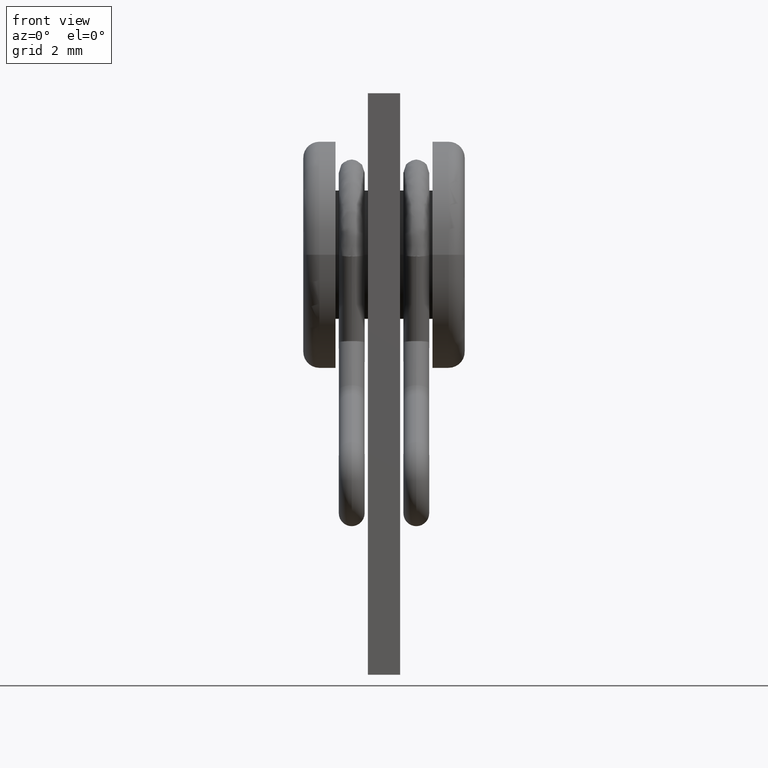
[diagram: clean part render]
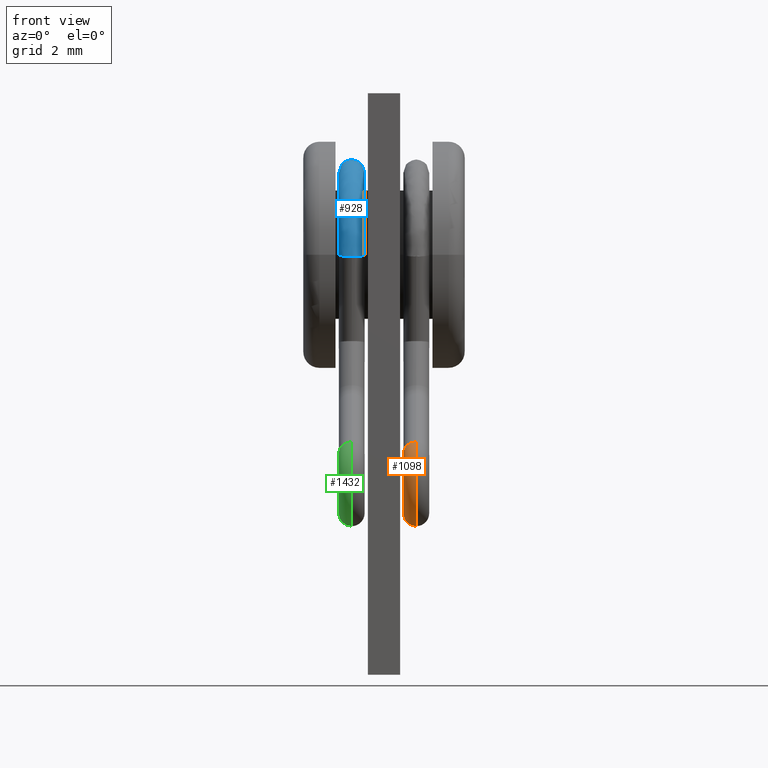
[diagram: same view with three faces highlighted in distinct colors, each labeled with its STEP entity id]
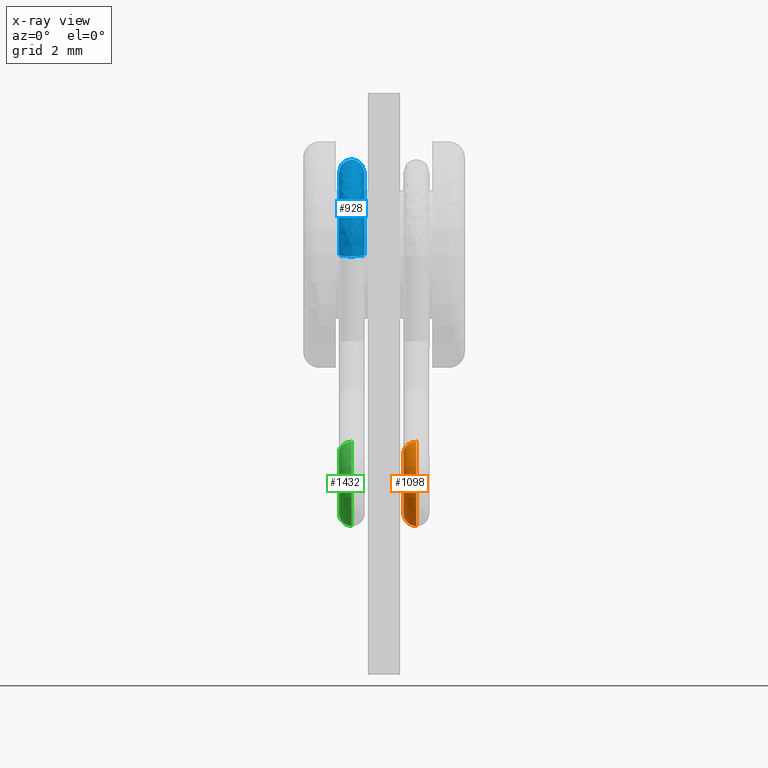
[diagram: x-ray of the same camera — body ghosted, the three highlighted faces saturated]
A machine part, front view with three faces highlighted in distinct colors.
The next image is the same camera in x-ray (body ghosted, the three faces saturated) — at least one of them is partly hidden behind the body in this view.
Their STEP definitions:

[orange] entity #1098 — the highlighted toroidal blend (fillet) surface has major radius 1 mm and minor (blend) radius 0.4 mm.
#17 = ORIENTED_EDGE ( 'NONE', *, *, #1753, .F. ) ;
#70 = DIRECTION ( 'NONE',  ( -2.769644685656682055E-16, 0.8630376117627194255, 0.5051396645314063516 ) ) ;
#133 = VERTEX_POINT ( 'NONE', #3028 ) ;
#238 = CARTESIAN_POINT ( 'NONE',  ( 1.000000000000002665, -4.999999999999995559, 6.000000000000000000 ) ) ;
#272 = AXIS2_PLACEMENT_3D ( 'NONE', #2998, #70, #1533 ) ;
#319 = AXIS2_PLACEMENT_3D ( 'NONE', #238, #2883, #1410 ) ;
#397 = VERTEX_POINT ( 'NONE', #507 ) ;
#427 = FACE_OUTER_BOUND ( 'NONE', #1535, .T. ) ;
#507 = CARTESIAN_POINT ( 'NONE',  ( 1.000000000000002887, -5.303083798718839503, 6.517822567057631744 ) ) ;
#539 = DIRECTION ( 'NONE',  ( -3.614007241618348771E-16, 1.000000000000000000, 0.000000000000000000 ) ) ;
#620 = EDGE_CURVE ( 'NONE', #397, #1096, #2556, .T. ) ;
#653 = VERTEX_POINT ( 'NONE', #2078 ) ;
#682 = DIRECTION ( 'NONE',  ( 1.000000000000000000, 3.794707603699264533E-16, 0.000000000000000000 ) ) ;
#772 = AXIS2_PLACEMENT_3D ( 'NONE', #1113, #2080, #539 ) ;
#776 = CIRCLE ( 'NONE', #2105, 1.399999999999999245 ) ;
#834 = TOROIDAL_SURFACE ( 'NONE', #319, 0.9999999999999993339, 0.3999999999999999667 ) ;
#922 = ORIENTED_EDGE ( 'NONE', *, *, #2216, .T. ) ;
#1013 = CARTESIAN_POINT ( 'NONE',  ( 1.000000000000002887, -4.999999999999995559, 5.000000000000000888 ) ) ;
#1096 = VERTEX_POINT ( 'NONE', #1463 ) ;
#1098 = ADVANCED_FACE ( 'NONE', ( #427 ), #834, .T. ) ;
#1101 = CARTESIAN_POINT ( 'NONE',  ( 1.000000000000002887, -4.999999999999995559, 5.000000000000000888 ) ) ;
#1113 = CARTESIAN_POINT ( 'NONE',  ( 1.000000000000002665, -4.999999999999995559, 6.000000000000000000 ) ) ;
#1147 = DIRECTION ( 'NONE',  ( 1.000000000000000000, 0.000000000000000000, 0.000000000000000000 ) ) ;
#1161 = EDGE_CURVE ( 'NONE', #133, #653, #776, .T. ) ;
#1344 = ORIENTED_EDGE ( 'NONE', *, *, #620, .T. ) ;
#1393 = EDGE_CURVE ( 'NONE', #1096, #1635, #2903, .T. ) ;
#1410 = DIRECTION ( 'NONE',  ( -3.794707603699265026E-16, 1.000000000000000000, 0.000000000000000000 ) ) ;
#1460 = CARTESIAN_POINT ( 'NONE',  ( 0.6000000000000028644, -4.999999999999995559, 5.000000000000000000 ) ) ;
#1463 = CARTESIAN_POINT ( 'NONE',  ( 1.000000000000002665, -4.999999999999995559, 5.400000000000001243 ) ) ;
#1507 = ORIENTED_EDGE ( 'NONE', *, *, #1161, .F. ) ;
#1533 = DIRECTION ( 'NONE',  ( 1.000000000000000000, 0.000000000000000000, 0.000000000000000000 ) ) ;
#1535 = EDGE_LOOP ( 'NONE', ( #1507, #17, #1344, #2560, #922 ) ) ;
#1635 = VERTEX_POINT ( 'NONE', #1460 ) ;
#1702 = CIRCLE ( 'NONE', #272, 0.3999999999999999667 ) ;
#1753 = EDGE_CURVE ( 'NONE', #397, #133, #1702, .T. ) ;
#1792 = DIRECTION ( 'NONE',  ( 5.310377987684109770E-16, -1.000000000000000000, 0.000000000000000000 ) ) ;
#1857 = AXIS2_PLACEMENT_3D ( 'NONE', #1013, #2877, #1973 ) ;
#1954 = CIRCLE ( 'NONE', #1857, 0.3999999999999999667 ) ;
#1973 = DIRECTION ( 'NONE',  ( 1.000000000000000000, 0.000000000000000000, 0.000000000000000000 ) ) ;
#2078 = CARTESIAN_POINT ( 'NONE',  ( 1.000000000000002665, -4.999999999999995559, 4.600000000000000533 ) ) ;
#2080 = DIRECTION ( 'NONE',  ( 1.000000000000000000, 3.794707603699264533E-16, 0.000000000000000000 ) ) ;
#2105 = AXIS2_PLACEMENT_3D ( 'NONE', #2167, #682, #2650 ) ;
#2157 = AXIS2_PLACEMENT_3D ( 'NONE', #1101, #1792, #1147 ) ;
#2167 = CARTESIAN_POINT ( 'NONE',  ( 1.000000000000002665, -4.999999999999995559, 6.000000000000000000 ) ) ;
#2216 = EDGE_CURVE ( 'NONE', #1635, #653, #1954, .T. ) ;
#2556 = CIRCLE ( 'NONE', #772, 0.5999999999999998668 ) ;
#2560 = ORIENTED_EDGE ( 'NONE', *, *, #1393, .T. ) ;
#2650 = DIRECTION ( 'NONE',  ( -3.097720492815728645E-16, 1.000000000000000000, 0.000000000000000000 ) ) ;
#2877 = DIRECTION ( 'NONE',  ( 5.310377987684109770E-16, -1.000000000000000000, 0.000000000000000000 ) ) ;
#2883 = DIRECTION ( 'NONE',  ( 1.000000000000000000, 3.794707603699264533E-16, 0.000000000000000000 ) ) ;
#2903 = CIRCLE ( 'NONE', #2157, 0.3999999999999999667 ) ;
#2998 = CARTESIAN_POINT ( 'NONE',  ( 1.000000000000002887, -5.505139664531401245, 6.863037611762718093 ) ) ;
#3028 = CARTESIAN_POINT ( 'NONE',  ( 1.000000000000002887, -5.707195530343964762, 7.208252656467807995 ) ) ;

[blue] entity #928 — the highlighted face is a freeform B-spline surface patch.
#3 = CARTESIAN_POINT ( 'NONE',  ( -1.357678076555738800, 2.757733919338726469, 12.97265988112446244 ) ) ;
#6 = ORIENTED_EDGE ( 'NONE', *, *, #1685, .T. ) ;
#53 = CARTESIAN_POINT ( 'NONE',  ( -0.6000000000000011990, -2.468288161014357218, 13.66175922868801251 ) ) ;
#55 = CARTESIAN_POINT ( 'NONE',  ( -1.400000000000000133, 0.4581475110107846582, 14.74999999999884004 ) ) ;
#56 = CARTESIAN_POINT ( 'NONE',  ( -0.6000000000000009770, -1.399416392710959967, 14.07545734150463801 ) ) ;
#69 = CARTESIAN_POINT ( 'NONE',  ( -0.5999999999999990896, 3.349989222046435344, 13.09680935352849573 ) ) ;
#88 = CARTESIAN_POINT ( 'NONE',  ( -0.6000000000000016431, -3.349989222046363402, 13.09680935352849929 ) ) ;
#101 = CARTESIAN_POINT ( 'NONE',  ( -0.6000000000000013101, -2.545879930339973729, 13.16724665663084970 ) ) ;
#111 = CARTESIAN_POINT ( 'NONE',  ( -1.399999999999999467, 2.517196728838232200, 13.41615929504400206 ) ) ;
#117 = CARTESIAN_POINT ( 'NONE',  ( -0.5999999999999990896, 3.350009266988449141, 12.91676238393189102 ) ) ;
#150 = CARTESIAN_POINT ( 'NONE',  ( -1.400000000000001465, -3.306905506512976878, 13.54671907388143204 ) ) ;
#165 = CARTESIAN_POINT ( 'NONE',  ( -1.399999999999999467, 2.517196728838232200, 13.41615929504400206 ) ) ;
#169 = CARTESIAN_POINT ( 'NONE',  ( -0.5999999999999998668, 1.331067674462010686, 15.27517690940495854 ) ) ;
#206 = B_SPLINE_CURVE_WITH_KNOTS ( 'NONE', 3,
 ( #456, #3110, #1452, #3, #1210, #2623 ),
 .UNSPECIFIED., .F., .F.,
 ( 4, 2, 4 ),
 ( 0.0006202787209371002060, 0.0009341337470515161025, 0.001247988773165931891 ),
 .UNSPECIFIED. ) ;
#217 = CARTESIAN_POINT ( 'NONE',  ( -0.6000000000000000888, 1.399416392711164248, 14.07545734150523309 ) ) ;
#235 = B_SPLINE_CURVE_WITH_KNOTS ( 'NONE', 3,
 ( #1887, #674, #2143, #1654, #2614, #437 ),
 .UNSPECIFIED., .F., .F.,
 ( 4, 2, 4 ),
 ( 0.0006284202095626171278, 0.0009467790735410146642, 0.001265137937519412309 ),
 .UNSPECIFIED. ) ;
#251 = ORIENTED_EDGE ( 'NONE', *, *, #1483, .T. ) ;
#261 = CARTESIAN_POINT ( 'NONE',  ( -0.5999999999999996447, 2.517196728838267727, 13.41615929504400206 ) ) ;
#271 = CARTESIAN_POINT ( 'NONE',  ( -1.399999999999999467, 2.550000000000009148, 13.00000000000001066 ) ) ;
#286 = ORIENTED_EDGE ( 'NONE', *, *, #1978, .F. ) ;
#287 = CARTESIAN_POINT ( 'NONE',  ( -1.399999999999999467, 1.748657533116892759, 15.98895790059101252 ) ) ;
#294 = CARTESIAN_POINT ( 'NONE',  ( -1.400000000000000799, -1.735916913686351037, 13.22886241449764455 ) ) ;
#302 = CARTESIAN_POINT ( 'NONE',  ( -0.6000000000000013101, -2.529478931371553330, 13.33348523255366125 ) ) ;
#309 = CARTESIAN_POINT ( 'NONE',  ( -1.400000000000001243, -1.528898795973100411, 13.88172938376082932 ) ) ;
#317 = CARTESIAN_POINT ( 'NONE',  ( -1.399999999999999467, 3.350009266988449586, 12.91676238393189102 ) ) ;
#332 = CARTESIAN_POINT ( 'NONE',  ( -1.400000000000001243, -1.750000000000001554, 12.78414580212309204 ) ) ;
#338 = CARTESIAN_POINT ( 'NONE',  ( -0.6000000000000009770, -1.331067674462243167, 15.27517690940617356 ) ) ;
#350 = CARTESIAN_POINT ( 'NONE',  ( -0.6000000000000014211, -2.550000000000001155, 12.85609720141537871 ) ) ;
#356 = CARTESIAN_POINT ( 'NONE',  ( -0.9999999999999963363, 2.950003356577393543, 12.94735152788241450 ) ) ;
#364 = CARTESIAN_POINT ( 'NONE',  ( -1.400000000000001910, -3.350000000000000977, 12.85609720141538048 ) ) ;
#366 = CARTESIAN_POINT ( 'NONE',  ( -1.399999999999999467, 2.549991795886098256, 13.08368269480378920 ) ) ;
#385 = CARTESIAN_POINT ( 'NONE',  ( -1.400000000000001243, -2.550000000000001155, 12.85609720141537871 ) ) ;
#389 = CARTESIAN_POINT ( 'NONE',  ( -0.6428037988113329826, 2.758216709405810096, 12.97259633293495718 ) ) ;
#400 = CARTESIAN_POINT ( 'NONE',  ( -1.399999999999999467, 2.227823959846286783, 14.28480567347927810 ) ) ;
#421 = CARTESIAN_POINT ( 'NONE',  ( -1.399999999999999467, 2.227823959846286783, 14.28480567347927810 ) ) ;
#437 = CARTESIAN_POINT ( 'NONE',  ( -1.400000000000001243, -2.550000000000001155, 13.00000000000000178 ) ) ;
#456 = CARTESIAN_POINT ( 'NONE',  ( -0.9999999999999963363, 2.950003356577393543, 12.94735152788241450 ) ) ;
#498 = B_SPLINE_CURVE_WITH_KNOTS ( 'NONE', 3,
 ( #271, #972, #1739, #2601, #1502, #2469, #1260, #421, #1404, #2408, #2025, #2718, #2264, #1276, #2983, #817, #2498, #1553, #800, #2011, #1785, #851 ),
 .UNSPECIFIED., .F., .F.,
 ( 4, 2, 2, 2, 2, 2, 2, 2, 2, 2, 4 ),
 ( -1.545224709151703387E-15, 0.03124999999999862957, 0.06249999999999879957, 0.1249999999999991535, 0.2499999999999998335, 0.5000000000000012212, 0.7500000000000026645, 0.8750000000000033307, 0.9375000000000036637, 0.9687500000000037748, 1.000000000000003997 ),
 .UNSPECIFIED. ) ;
#518 = CARTESIAN_POINT ( 'NONE',  ( -1.400000000000001465, -2.926749123719576851, 14.68788196319920125 ) ) ;
#535 = CARTESIAN_POINT ( 'NONE',  ( -0.6000000000000014211, -2.550000000000001155, 12.78414580212309026 ) ) ;
#543 = CARTESIAN_POINT ( 'NONE',  ( -1.400000000000000133, 0.6675863731872427875, 15.54999999999883897 ) ) ;
#549 = CARTESIAN_POINT ( 'NONE',  ( -0.5999999999999997558, 2.419553885554824202, 13.82226230502555353 ) ) ;
#567 = CARTESIAN_POINT ( 'NONE',  ( -1.399999999999999467, 3.350000000000001865, 12.78414580212309204 ) ) ;
#569 = CARTESIAN_POINT ( 'NONE',  ( -1.400000000000000799, -1.399416392711032131, 14.07545734150463801 ) ) ;
#588 = CARTESIAN_POINT ( 'NONE',  ( -1.400000000000001243, -2.550007053976341975, 12.92804881173416121 ) ) ;
#589 = CARTESIAN_POINT ( 'NONE',  ( -1.399999999999999467, 3.350000000000001865, 12.85609720141527923 ) ) ;
#597 = VERTEX_POINT ( 'NONE', #2295 ) ;
#602 = CARTESIAN_POINT ( 'NONE',  ( -1.399999999999999911, 1.750000000000002665, 12.78414580212309204 ) ) ;
#641 = CARTESIAN_POINT ( 'NONE',  ( -1.399999999999999467, 2.550000000000002043, 12.78414580212309026 ) ) ;
#656 = CARTESIAN_POINT ( 'NONE',  ( -1.400000000000001243, -2.517196728838199782, 13.41615929504404825 ) ) ;
#658 = CARTESIAN_POINT ( 'NONE',  ( -0.6000000000000013101, -2.227823959846339630, 14.28480567348001529 ) ) ;
#674 = CARTESIAN_POINT ( 'NONE',  ( -1.104718135162353843, -2.950003356577420188, 12.94735152788251042 ) ) ;
#675 = CARTESIAN_POINT ( 'NONE',  ( -0.5999999999999997558, 2.529478931371553330, 13.33348523255367368 ) ) ;
#695 = CARTESIAN_POINT ( 'NONE',  ( -0.6000000000000004219, 0.6675863731872418994, 15.54999999999883897 ) ) ;
#705 = CARTESIAN_POINT ( 'NONE',  ( -1.400000000000000133, 1.528898795972922331, 13.88172938376019516 ) ) ;
#706 = CARTESIAN_POINT ( 'NONE',  ( -1.000000000000004219, -2.950003356577420188, 12.94735152788250865 ) ) ;
#707 = CARTESIAN_POINT ( 'NONE',  ( -1.400000000000001243, -1.749994369725686116, 13.07055603607910577 ) ) ;
#767 = CARTESIAN_POINT ( 'NONE',  ( -1.399999999999999467, 3.178629614356326627, 14.08022694973940858 ) ) ;
#782 = CARTESIAN_POINT ( 'NONE',  ( -0.5999999999999993117, 3.178629614356325739, 14.08022694973940858 ) ) ;
#784 = CARTESIAN_POINT ( 'NONE',  ( -1.400000000000000133, 1.399416392711129165, 14.07545734150523309 ) ) ;
#791 = CARTESIAN_POINT ( 'NONE',  ( -0.5999999999999997558, 2.529478931371553330, 13.33348523255367368 ) ) ;
#799 = CARTESIAN_POINT ( 'NONE',  ( -0.6000000000000016431, -3.350000000000000977, 12.78414580212309204 ) ) ;
#800 = CARTESIAN_POINT ( 'NONE',  ( -1.400000000000001021, -2.529478931371552441, 13.33348523255366125 ) ) ;
#803 = VERTEX_POINT ( 'NONE', #2488 ) ;
#810 = CARTESIAN_POINT ( 'NONE',  ( -1.400000000000000133, -0.6675863731872332396, 15.55000000000115712 ) ) ;
#816 = CARTESIAN_POINT ( 'NONE',  ( -0.6000000000000015321, -2.926749123719649237, 14.68788196319920125 ) ) ;
#817 = CARTESIAN_POINT ( 'NONE',  ( -1.400000000000001243, -2.419553885554790895, 13.82226230502519648 ) ) ;
#832 = CARTESIAN_POINT ( 'NONE',  ( -0.6000000000000014211, -2.549991795886024537, 13.08368269480380164 ) ) ;
#851 = CARTESIAN_POINT ( 'NONE',  ( -1.400000000000001243, -2.550000000000001155, 13.00000000000000178 ) ) ;
#868 = CARTESIAN_POINT ( 'NONE',  ( -1.400000000000001021, -2.529478931371552441, 13.33348523255366125 ) ) ;
#871 = EDGE_LOOP ( 'NONE', ( #1711, #251, #1455, #6, #286, #2144 ) ) ;
#885 = CARTESIAN_POINT ( 'NONE',  ( -1.400000000000001243, -2.419553885554790895, 13.82226230502519648 ) ) ;
#900 = CARTESIAN_POINT ( 'NONE',  ( -1.399999999999999467, 2.529478931371554218, 13.33348523255367368 ) ) ;
#909 = CARTESIAN_POINT ( 'NONE',  ( -1.400000000000001243, -2.549991795886024537, 13.08368269480380164 ) ) ;
#928 = ADVANCED_FACE ( 'NONE', ( #1934 ), #2781, .T. ) ;
#944 = CARTESIAN_POINT ( 'NONE',  ( -0.6000000000000010880, -1.727487951163475310, 13.28559951620666801 ) ) ;
#958 = CARTESIAN_POINT ( 'NONE',  ( -0.5999999999999996447, 2.549991795886097368, 13.08368269480378920 ) ) ;
#959 = CARTESIAN_POINT ( 'NONE',  ( -0.6000000000000013101, -2.545879930339787212, 13.16724665663274330 ) ) ;
#961 = B_SPLINE_CURVE_WITH_KNOTS ( 'NONE', 3,
 ( #2146, #1686, #1401, #675, #1189, #2586, #2117, #2392, #2821, #169, #695, #1144, #3105, #2176, #658, #1674, #1163, #1206, #2635, #959, #1919, #1639 ),
 .UNSPECIFIED., .F., .F.,
 ( 4, 2, 2, 2, 2, 2, 2, 2, 2, 2, 4 ),
 ( -3.703112690096296887E-15, 0.03124999999997413874, 0.06249999999995197592, 0.1249999999999076572, 0.2499999999998190336, 0.4999999999996417310, 0.7499999999994645394, 0.8749999999993758326, 0.9374999999993315347, 0.9687499999993094413, 0.9999999999992872368 ),
 .UNSPECIFIED. ) ;
#962 = CARTESIAN_POINT ( 'NONE',  ( -0.6000000000000000888, 1.749994369725758725, 13.07055603607908267 ) ) ;
#972 = CARTESIAN_POINT ( 'NONE',  ( -1.399999999999999911, 2.549991795886099144, 13.08368269480378210 ) ) ;
#974 = CARTESIAN_POINT ( 'NONE',  ( -0.6000000000000000888, 1.735916913686352370, 13.22886241449764988 ) ) ;
#983 = CARTESIAN_POINT ( 'NONE',  ( -1.400000000000001243, -2.227823959846338742, 14.28480567348001529 ) ) ;
#988 = CARTESIAN_POINT ( 'NONE',  ( -1.399999999999999467, 2.550000000000002043, 12.78414580212309026 ) ) ;
#998 = VERTEX_POINT ( 'NONE', #2808 ) ;
#1014 = CARTESIAN_POINT ( 'NONE',  ( -0.6000000000000004219, -0.4581475110107759985, 14.75000000000115818 ) ) ;
#1028 = CARTESIAN_POINT ( 'NONE',  ( -1.399999999999999245, 3.323040949056755622, 13.43810805060969393 ) ) ;
#1039 = VERTEX_POINT ( 'NONE', #1817 ) ;
#1044 = CARTESIAN_POINT ( 'NONE',  ( -0.6000000000000003109, 0.8770252353636999176, 16.34999999999883613 ) ) ;
#1061 = CARTESIAN_POINT ( 'NONE',  ( -1.399999999999999245, 3.306905506512989312, 13.54671907388135743 ) ) ;
#1067 = CARTESIAN_POINT ( 'NONE',  ( -1.400000000000000799, -1.727487951163421354, 13.28559951620666801 ) ) ;
#1071 = CARTESIAN_POINT ( 'NONE',  ( -0.6000000000000000888, 1.750000000000001554, 12.78414580212309204 ) ) ;
#1076 = CARTESIAN_POINT ( 'NONE',  ( -1.400000000000001021, -2.545879930339972841, 13.16724665663084970 ) ) ;
#1077 = CARTESIAN_POINT ( 'NONE',  ( -0.6000000000000015321, -3.344587359466212106, 13.21971619596604874 ) ) ;
#1086 = CARTESIAN_POINT ( 'NONE',  ( -1.399999999999999467, 2.419553885554824202, 13.82226230502555353 ) ) ;
#1091 = CARTESIAN_POINT ( 'NONE',  ( -1.400000000000001243, -2.550000000000001155, 12.85609720141537871 ) ) ;
#1092 = CARTESIAN_POINT ( 'NONE',  ( -0.6000000000000013101, -2.419553885554791783, 13.82226230502519648 ) ) ;
#1124 = CARTESIAN_POINT ( 'NONE',  ( -1.399999999999999467, 2.550000000000002043, 12.85609720141527745 ) ) ;
#1131 = CARTESIAN_POINT ( 'NONE',  ( -1.399999999999999467, 2.545879930339978170, 13.16724665663082305 ) ) ;
#1138 = CARTESIAN_POINT ( 'NONE',  ( -1.400000000000001021, -1.331067674462242278, 15.27517690940617356 ) ) ;
#1144 = CARTESIAN_POINT ( 'NONE',  ( -0.6000000000000004219, -0.6675863731872341278, 15.55000000000115712 ) ) ;
#1163 = CARTESIAN_POINT ( 'NONE',  ( -0.6000000000000011990, -2.468288161014357218, 13.66175922868801251 ) ) ;
#1175 = CARTESIAN_POINT ( 'NONE',  ( -0.6000000000000000888, 1.528898795972921221, 13.88172938376019516 ) ) ;
#1189 = CARTESIAN_POINT ( 'NONE',  ( -0.5999999999999996447, 2.517196728838267727, 13.41615929504400206 ) ) ;
#1191 = B_SPLINE_CURVE_WITH_KNOTS ( 'NONE', 3,
 ( #2316, #2573, #389, #1574, #1365, #356 ),
 .UNSPECIFIED., .F., .F.,
 ( 4, 2, 4 ),
 ( -7.861450877188101911E-06, 0.0003062086350299560622, 0.0006202787209371002060 ),
 .UNSPECIFIED. ) ;
#1192 = EDGE_CURVE ( 'NONE', #803, #2784, #206, .T. ) ;
#1206 = CARTESIAN_POINT ( 'NONE',  ( -0.6000000000000011990, -2.517196728838235753, 13.41615929504404825 ) ) ;
#1210 = CARTESIAN_POINT ( 'NONE',  ( -1.399999999999998579, 2.653728820469136718, 12.98634897153827517 ) ) ;
#1259 = CARTESIAN_POINT ( 'NONE',  ( -0.6000000000000009770, -2.039149600807421248, 14.56709498333545838 ) ) ;
#1260 = CARTESIAN_POINT ( 'NONE',  ( -1.399999999999999467, 2.419553885554824202, 13.82226230502555353 ) ) ;
#1261 = CARTESIAN_POINT ( 'NONE',  ( -1.400000000000000133, 0.9134778158071293896, 14.56139591821890811 ) ) ;
#1267 = CARTESIAN_POINT ( 'NONE',  ( -1.400000000000000799, -1.747172501213716478, 13.11477711729564888 ) ) ;
#1275 = CARTESIAN_POINT ( 'NONE',  ( -0.5999999999999993117, 3.344587359466233867, 13.21971619596601677 ) ) ;
#1276 = CARTESIAN_POINT ( 'NONE',  ( -1.400000000000001021, -2.039149600807420359, 14.56709498333546016 ) ) ;
#1277 = CARTESIAN_POINT ( 'NONE',  ( -1.400000000000000799, -0.9134778158073045828, 14.56139591822010537 ) ) ;
#1283 = CARTESIAN_POINT ( 'NONE',  ( -1.400000000000000799, -1.693923247755098727, 13.45414849027615922 ) ) ;
#1295 = CARTESIAN_POINT ( 'NONE',  ( -0.6000000000000003109, -0.8770252353636921461, 16.35000000000115605 ) ) ;
#1302 = CARTESIAN_POINT ( 'NONE',  ( -0.5999999999999996447, 2.550000000000001155, 12.78414580212309026 ) ) ;
#1315 = CARTESIAN_POINT ( 'NONE',  ( -0.5999999999999990896, 3.306905506513007520, 13.54671907388135743 ) ) ;
#1325 = CARTESIAN_POINT ( 'NONE',  ( -0.6000000000000013101, -1.750000000000001554, 12.78414580212309204 ) ) ;
#1328 = CARTESIAN_POINT ( 'NONE',  ( -0.5999999999999990896, 3.350000000000000977, 12.85609720141527923 ) ) ;
#1335 = CARTESIAN_POINT ( 'NONE',  ( -0.6000000000000015321, -2.550000000001543032, 13.00000000000575717 ) ) ;
#1364 = CARTESIAN_POINT ( 'NONE',  ( -0.8953535829243045585, -2.950003356577420632, 12.94735152788251042 ) ) ;
#1365 = CARTESIAN_POINT ( 'NONE',  ( -0.8952639853796516833, 2.950003356577393987, 12.94735152788241095 ) ) ;
#1380 = CARTESIAN_POINT ( 'NONE',  ( -1.400000000000001021, -2.545879930339972841, 13.16724665663084970 ) ) ;
#1398 = CARTESIAN_POINT ( 'NONE',  ( -0.5999999999999996447, 2.550007053976279359, 12.92804881173416298 ) ) ;
#1401 = CARTESIAN_POINT ( 'NONE',  ( -0.5999999999999997558, 2.545879930339978170, 13.16724665663081417 ) ) ;
#1404 = CARTESIAN_POINT ( 'NONE',  ( -1.399999999999999689, 2.039149600807544704, 14.56709498333606234 ) ) ;
#1452 = CARTESIAN_POINT ( 'NONE',  ( -1.209049917906914073, 2.906912434163041681, 12.95302396940759948 ) ) ;
#1455 = ORIENTED_EDGE ( 'NONE', *, *, #1192, .T. ) ;
#1483 = EDGE_CURVE ( 'NONE', #597, #803, #1191, .T. ) ;
#1501 = CARTESIAN_POINT ( 'NONE',  ( -1.400000000000001465, -3.178629614356356381, 14.08022694973900002 ) ) ;
#1502 = CARTESIAN_POINT ( 'NONE',  ( -1.399999999999999467, 2.517196728838232200, 13.41615929504400206 ) ) ;
#1504 = CARTESIAN_POINT ( 'NONE',  ( -0.6000000000000009770, -0.9134778158074491339, 14.56139591822010537 ) ) ;
#1517 = CARTESIAN_POINT ( 'NONE',  ( -0.5999999999999993117, 2.926749123719651458, 14.68788196319836459 ) ) ;
#1521 = CARTESIAN_POINT ( 'NONE',  ( -1.400000000000001243, -1.750004840964172415, 12.93933523953642784 ) ) ;
#1527 = CARTESIAN_POINT ( 'NONE',  ( -0.6000000000000000888, 1.750000000000001554, 12.85609720141527923 ) ) ;
#1532 = CARTESIAN_POINT ( 'NONE',  ( -0.5999999999999998668, 2.039149600807544260, 14.56709498333606234 ) ) ;
#1550 = CARTESIAN_POINT ( 'NONE',  ( -0.6000000000000004219, 0.4581475110107837145, 14.74999999999884004 ) ) ;
#1552 = CARTESIAN_POINT ( 'NONE',  ( -1.399999999999999467, 3.349989222046436232, 13.09680935352849573 ) ) ;
#1553 = CARTESIAN_POINT ( 'NONE',  ( -1.400000000000001243, -2.517196728838199782, 13.41615929504404825 ) ) ;
#1558 = CARTESIAN_POINT ( 'NONE',  ( -1.399999999999999467, 2.550000000000009148, 13.00000000000001066 ) ) ;
#1567 = CARTESIAN_POINT ( 'NONE',  ( -1.399999999999999467, 2.678882808903960466, 15.05873262516689515 ) ) ;
#1569 = B_SPLINE_CURVE_WITH_KNOTS ( 'NONE', 3,
 ( #1335, #1593, #2800, #2786, #1364, #3024 ),
 .UNSPECIFIED., .F., .F.,
 ( 4, 2, 4 ),
 ( -7.861450877174649333E-06, 0.0003102793793427212452, 0.0006284202095626171278 ),
 .UNSPECIFIED. ) ;
#1574 = CARTESIAN_POINT ( 'NONE',  ( -0.7904648936802516346, 2.906426318762784788, 12.95308795530054091 ) ) ;
#1585 = CARTESIAN_POINT ( 'NONE',  ( -1.399999999999999911, 1.749994369725759835, 13.07055603607908267 ) ) ;
#1590 = CARTESIAN_POINT ( 'NONE',  ( -1.399999999999999467, 2.550007053976280247, 12.92804881173416298 ) ) ;
#1593 = CARTESIAN_POINT ( 'NONE',  ( -0.6000000000000016431, -2.655145275089607626, 12.98616256172633676 ) ) ;
#1602 = CARTESIAN_POINT ( 'NONE',  ( -1.399999999999999467, 2.549991795886098256, 13.08368269480378920 ) ) ;
#1618 = CARTESIAN_POINT ( 'NONE',  ( -1.399999999999999467, 2.529478931371554218, 13.33348523255367368 ) ) ;
#1628 = CARTESIAN_POINT ( 'NONE',  ( -1.399999999999999467, 2.468288161014374094, 13.66175922868808001 ) ) ;
#1636 = CARTESIAN_POINT ( 'NONE',  ( -1.400000000000001243, -2.550000000000001155, 12.78414580212309026 ) ) ;
#1639 = CARTESIAN_POINT ( 'NONE',  ( -0.6000000000000015321, -2.550000000001543032, 13.00000000000575717 ) ) ;
#1653 = CARTESIAN_POINT ( 'NONE',  ( -1.400000000000000133, -0.6675863731872332396, 15.55000000000115712 ) ) ;
#1654 = CARTESIAN_POINT ( 'NONE',  ( -1.357154942148883103, -2.758277962741888523, 12.97258827055907382 ) ) ;
#1674 = CARTESIAN_POINT ( 'NONE',  ( -0.6000000000000013101, -2.419553885554791783, 13.82226230502519648 ) ) ;
#1685 = EDGE_CURVE ( 'NONE', #2784, #1039, #498, .T. ) ;
#1686 = CARTESIAN_POINT ( 'NONE',  ( -0.5999999999999996447, 2.549991795886098256, 13.08368269480377144 ) ) ;
#1711 = ORIENTED_EDGE ( 'NONE', *, *, #2878, .F. ) ;
#1717 = CARTESIAN_POINT ( 'NONE',  ( -0.5999999999999999778, 1.693923247754893335, 13.45414849027617521 ) ) ;
#1720 = CARTESIAN_POINT ( 'NONE',  ( -0.6000000000000000888, 1.750004840964110242, 12.93933523953643849 ) ) ;
#1738 = CARTESIAN_POINT ( 'NONE',  ( -1.400000000000001465, -2.678882808903808144, 15.05873262516628230 ) ) ;
#1739 = CARTESIAN_POINT ( 'NONE',  ( -1.399999999999999467, 2.545879930339979058, 13.16724665663082128 ) ) ;
#1756 = CARTESIAN_POINT ( 'NONE',  ( -1.400000000000001243, -2.468288161014429605, 13.66175922868801251 ) ) ;
#1757 = CARTESIAN_POINT ( 'NONE',  ( -0.6000000000000015321, -3.178629614356319966, 14.08022694973900002 ) ) ;
#1759 = CARTESIAN_POINT ( 'NONE',  ( -1.400000000000000133, -0.4581475110107751658, 14.75000000000115818 ) ) ;
#1770 = CARTESIAN_POINT ( 'NONE',  ( -0.5999999999999993117, 3.323040949056754734, 13.43810805060969393 ) ) ;
#1784 = CARTESIAN_POINT ( 'NONE',  ( -0.6000000000000016431, -3.350009266988511758, 12.91676238393189635 ) ) ;
#1785 = CARTESIAN_POINT ( 'NONE',  ( -1.400000000000001243, -2.549991795886024981, 13.08368269480378210 ) ) ;
#1805 = CARTESIAN_POINT ( 'NONE',  ( -0.5999999999999997558, 2.227823959846286339, 14.28480567347927810 ) ) ;
#1817 = CARTESIAN_POINT ( 'NONE',  ( -1.400000000000001243, -2.550000000000001155, 13.00000000000000178 ) ) ;
#1834 = CARTESIAN_POINT ( 'NONE',  ( -1.400000000000001465, -3.344587359466229870, 13.21971619596604697 ) ) ;
#1842 = CARTESIAN_POINT ( 'NONE',  ( -0.5999999999999997558, 2.545879930339977282, 13.16724665663082305 ) ) ;
#1851 = CARTESIAN_POINT ( 'NONE',  ( -1.400000000000001465, -3.323040949056754290, 13.43810805060968150 ) ) ;
#1871 = CARTESIAN_POINT ( 'NONE',  ( -1.399999999999999689, 2.039149600807544704, 14.56709498333606234 ) ) ;
#1873 = CARTESIAN_POINT ( 'NONE',  ( -0.5999999999999996447, 2.550000000000001155, 12.85609720141527745 ) ) ;
#1887 = CARTESIAN_POINT ( 'NONE',  ( -1.000000000000004219, -2.950003356577420188, 12.94735152788250865 ) ) ;
#1908 = CARTESIAN_POINT ( 'NONE',  ( -0.6000000000000010880, -1.735916913686333274, 13.22886241449764455 ) ) ;
#1919 = CARTESIAN_POINT ( 'NONE',  ( -0.6000000000000014211, -2.549991795885837131, 13.08368269480761548 ) ) ;
#1932 = CARTESIAN_POINT ( 'NONE',  ( -1.399999999999999911, 1.693923247755002803, 13.45414849027617521 ) ) ;
#1934 = FACE_OUTER_BOUND ( 'NONE', #871, .T. ) ;
#1944 = CARTESIAN_POINT ( 'NONE',  ( -1.400000000000000133, 1.660478156753323109, 13.56429766031170026 ) ) ;
#1953 = CARTESIAN_POINT ( 'NONE',  ( -1.399999999999999467, 2.550000000000002043, 12.85609720141527745 ) ) ;
#1978 = EDGE_CURVE ( 'NONE', #2920, #1039, #235, .T. ) ;
#1989 = CARTESIAN_POINT ( 'NONE',  ( -1.399999999999999467, 2.926749123719651902, 14.68788196319836459 ) ) ;
#1991 = CARTESIAN_POINT ( 'NONE',  ( -0.6000000000000013101, -1.528898795973029578, 13.88172938376082932 ) ) ;
#2010 = CARTESIAN_POINT ( 'NONE',  ( -0.6000000000000010880, -1.748657533117035534, 15.98895790059223998 ) ) ;
#2011 = CARTESIAN_POINT ( 'NONE',  ( -1.400000000000001021, -2.545879930339973729, 13.16724665663083726 ) ) ;
#2017 = CARTESIAN_POINT ( 'NONE',  ( -1.400000000000001243, -1.660478156753226076, 13.56429766031139117 ) ) ;
#2024 = CARTESIAN_POINT ( 'NONE',  ( -0.5999999999999996447, 2.468288161014300819, 13.66175922868808001 ) ) ;
#2025 = CARTESIAN_POINT ( 'NONE',  ( -1.400000000000000133, 0.6675863731872427875, 15.54999999999883897 ) ) ;
#2033 = CARTESIAN_POINT ( 'NONE',  ( -1.399999999999999467, 2.227823959846286783, 14.28480567347927810 ) ) ;
#2038 = CARTESIAN_POINT ( 'NONE',  ( -0.6000000000000004219, 0.6675863731872418994, 15.54999999999883897 ) ) ;
#2057 = CARTESIAN_POINT ( 'NONE',  ( -1.400000000000000133, -0.8770252353636912579, 16.35000000000115605 ) ) ;
#2072 = CARTESIAN_POINT ( 'NONE',  ( -0.6000000000000013101, -1.750000000000001554, 12.85609720141538048 ) ) ;
#2074 = CARTESIAN_POINT ( 'NONE',  ( -1.400000000000001243, -2.517196728838199782, 13.41615929504404825 ) ) ;
#2092 = CARTESIAN_POINT ( 'NONE',  ( -1.400000000000001243, -2.468288161014429605, 13.66175922868801251 ) ) ;
#2108 = CARTESIAN_POINT ( 'NONE',  ( -1.400000000000000133, 0.6675863731872427875, 15.54999999999883897 ) ) ;
#2117 = CARTESIAN_POINT ( 'NONE',  ( -0.5999999999999997558, 2.419553885554824202, 13.82226230502555353 ) ) ;
#2143 = CARTESIAN_POINT ( 'NONE',  ( -1.209500739106729617, -2.906440962441719567, 12.95308602758450967 ) ) ;
#2144 = ORIENTED_EDGE ( 'NONE', *, *, #2697, .F. ) ;
#2146 = CARTESIAN_POINT ( 'NONE',  ( -0.5999999999999996447, 2.549999999999999822, 12.99999999999999467 ) ) ;
#2176 = CARTESIAN_POINT ( 'NONE',  ( -0.6000000000000009770, -2.039149600807421248, 14.56709498333545838 ) ) ;
#2229 = CARTESIAN_POINT ( 'NONE',  ( -0.6000000000000013101, -2.227823959846339630, 14.28480567348001529 ) ) ;
#2232 = CARTESIAN_POINT ( 'NONE',  ( -1.399999999999999911, 1.727487951163474200, 13.28559951620664670 ) ) ;
#2245 = CARTESIAN_POINT ( 'NONE',  ( -0.5999999999999994227, 2.678882808903923607, 15.05873262516689515 ) ) ;
#2263 = CARTESIAN_POINT ( 'NONE',  ( -0.6000000000000004219, -0.6675863731872341278, 15.55000000000115712 ) ) ;
#2264 = CARTESIAN_POINT ( 'NONE',  ( -1.400000000000001021, -1.331067674462242278, 15.27517690940617356 ) ) ;
#2271 = CARTESIAN_POINT ( 'NONE',  ( -1.400000000000001243, -1.750000000000001554, 12.85609720141538048 ) ) ;
#2275 = CARTESIAN_POINT ( 'NONE',  ( -0.6000000000000013101, -1.750004840964172415, 12.93933523953642784 ) ) ;
#2278 = CARTESIAN_POINT ( 'NONE',  ( -1.399999999999999245, 3.344587359466234755, 13.21971619596601677 ) ) ;
#2288 = CARTESIAN_POINT ( 'NONE',  ( -1.400000000000001243, -2.549991795886024537, 13.08368269480380164 ) ) ;
#2289 = CARTESIAN_POINT ( 'NONE',  ( -1.400000000000000133, 0.8770252353637008058, 16.34999999999883613 ) ) ;
#2295 = CARTESIAN_POINT ( 'NONE',  ( -0.5999999999999996447, 2.549999999999999822, 12.99999999999999467 ) ) ;
#2316 = CARTESIAN_POINT ( 'NONE',  ( -0.5999999999999996447, 2.549999999999999822, 12.99999999999999467 ) ) ;
#2328 = CARTESIAN_POINT ( 'NONE',  ( -1.400000000000001243, -2.227823959846338742, 14.28480567348001529 ) ) ;
#2342 = CARTESIAN_POINT ( 'NONE',  ( -1.399999999999999467, 2.550007053976280247, 12.92804881173416298 ) ) ;
#2377 = CARTESIAN_POINT ( 'NONE',  ( -1.400000000000001910, -3.349989222046363402, 13.09680935352849929 ) ) ;
#2392 = CARTESIAN_POINT ( 'NONE',  ( -0.5999999999999997558, 2.227823959846286339, 14.28480567347927810 ) ) ;
#2393 = CARTESIAN_POINT ( 'NONE',  ( -0.6000000000000000888, 1.660478156753322443, 13.56429766031170026 ) ) ;
#2395 = CARTESIAN_POINT ( 'NONE',  ( -0.6000000000000010880, -1.747172501213735574, 13.11477711729564888 ) ) ;
#2408 = CARTESIAN_POINT ( 'NONE',  ( -1.399999999999999689, 1.331067674462011352, 15.27517690940495854 ) ) ;
#2468 = CARTESIAN_POINT ( 'NONE',  ( -1.400000000000001465, -3.242653074273759373, 13.86936996709986758 ) ) ;
#2469 = CARTESIAN_POINT ( 'NONE',  ( -1.399999999999999467, 2.468288161014374094, 13.66175922868808001 ) ) ;
#2481 = CARTESIAN_POINT ( 'NONE',  ( -0.6000000000000014211, -2.550007053976341975, 12.92804881173416121 ) ) ;
#2488 = CARTESIAN_POINT ( 'NONE',  ( -0.9999999999999963363, 2.950003356577393543, 12.94735152788241450 ) ) ;
#2497 = CARTESIAN_POINT ( 'NONE',  ( -0.6000000000000010880, -2.678882808903880530, 15.05873262516628230 ) ) ;
#2498 = CARTESIAN_POINT ( 'NONE',  ( -1.400000000000001243, -2.468288161014429605, 13.66175922868801251 ) ) ;
#2519 = CARTESIAN_POINT ( 'NONE',  ( -1.399999999999999245, 3.242653074273744718, 13.86936996709998660 ) ) ;
#2531 = CARTESIAN_POINT ( 'NONE',  ( -0.6000000000000015321, -3.323040949056772941, 13.43810805060967795 ) ) ;
#2533 = CARTESIAN_POINT ( 'NONE',  ( -1.399999999999999911, 1.735916913686353036, 13.22886241449764988 ) ) ;
#2568 = CARTESIAN_POINT ( 'NONE',  ( -1.399999999999999467, 2.468288161014374094, 13.66175922868808001 ) ) ;
#2573 = CARTESIAN_POINT ( 'NONE',  ( -0.5999999999999997558, 2.653799897548906550, 12.98633961758071464 ) ) ;
#2582 = CARTESIAN_POINT ( 'NONE',  ( -1.399999999999999467, 2.419553885554824202, 13.82226230502555353 ) ) ;
#2586 = CARTESIAN_POINT ( 'NONE',  ( -0.5999999999999996447, 2.468288161014300819, 13.66175922868808001 ) ) ;
#2601 = CARTESIAN_POINT ( 'NONE',  ( -1.399999999999999467, 2.529478931371554218, 13.33348523255367368 ) ) ;
#2614 = CARTESIAN_POINT ( 'NONE',  ( -1.400000000000001243, -2.655217335070957141, 12.98615307848685596 ) ) ;
#2623 = CARTESIAN_POINT ( 'NONE',  ( -1.399999999999999467, 2.550000000000009148, 13.00000000000001066 ) ) ;
#2635 = CARTESIAN_POINT ( 'NONE',  ( -0.6000000000000013101, -2.529478931371553330, 13.33348523255366125 ) ) ;
#2697 = EDGE_CURVE ( 'NONE', #998, #2920, #1569, .T. ) ;
#2699 = CARTESIAN_POINT ( 'NONE',  ( -0.5999999999999990896, 3.350000000000000977, 12.78414580212309204 ) ) ;
#2717 = CARTESIAN_POINT ( 'NONE',  ( -0.6000000000000014211, -3.242653074273723401, 13.86936996709986758 ) ) ;
#2718 = CARTESIAN_POINT ( 'NONE',  ( -1.400000000000000133, -0.6675863731872332396, 15.55000000000115712 ) ) ;
#2729 = CARTESIAN_POINT ( 'NONE',  ( -0.5999999999999990896, 3.242653074273708302, 13.86936996709998660 ) ) ;
#2737 = CARTESIAN_POINT ( 'NONE',  ( -1.400000000000001021, -2.039149600807420359, 14.56709498333546016 ) ) ;
#2745 = CARTESIAN_POINT ( 'NONE',  ( -1.400000000000001021, -2.529478931371552441, 13.33348523255366125 ) ) ;
#2746 = CARTESIAN_POINT ( 'NONE',  ( -0.6000000000000016431, -3.350000000000000977, 12.85609720141538048 ) ) ;
#2766 = CARTESIAN_POINT ( 'NONE',  ( -0.6000000000000011990, -2.517196728838235753, 13.41615929504404825 ) ) ;
#2781 =( BOUNDED_SURFACE ( )  B_SPLINE_SURFACE ( 3, 3, ( 
 ( #988, #1953, #1590, #366, #1131, #900, #111, #1628, #1086, #2033, #3088, #2919, #543, #810, #2972, #2737, #983, #2935, #1756, #2074, #2745, #1076, #2288, #588, #1091, #3018 ),
 ( #602, #3045, #3033, #1585, #2999, #2533, #2232, #1932, #1944, #705, #784, #1261, #55, #1759, #1277, #569, #309, #2017, #1283, #1067, #294, #1267, #707, #1521, #2271, #332 ),
 ( #1071, #1527, #1720, #962, #3137, #974, #2893, #1717, #2393, #1175, #217, #3125, #1550, #1014, #1504, #56, #1991, #2950, #3107, #944, #1908, #2395, #2980, #2275, #2072, #1325 ),
 ( #1302, #1873, #1398, #958, #1842, #791, #261, #2024, #549, #1805, #1532, #2982, #2038, #2263, #338, #1259, #2229, #1092, #53, #2766, #302, #101, #832, #2481, #350, #535 ),
 ( #2699, #1328, #117, #69, #1275, #1770, #1315, #2729, #782, #1517, #2245, #2997, #1044, #1295, #2010, #2497, #816, #1757, #2717, #2965, #2531, #1077, #88, #1784, #2746, #799 ),
 ( #567, #589, #317, #1552, #2278, #1028, #1061, #2519, #767, #1989, #1567, #287, #2289, #2057, #2947, #1738, #518, #1501, #2468, #150, #1851, #1834, #2377, #2814, #364, #3046 ),
 ( #641, #1124, #2342, #1602, #2795, #1618, #165, #2568, #2582, #400, #1871, #3089, #2108, #1653, #1138, #3068, #2328, #885, #2092, #656, #868, #1380, #909, #2833, #385, #1636 ) ),
 .UNSPECIFIED., .T., .F., .F. ) 
 B_SPLINE_SURFACE_WITH_KNOTS ( ( 4, 3, 4 ),
 ( 4, 2, 2, 2, 2, 2, 2, 2, 2, 2, 2, 2, 4 ),
 ( 0.000000000000000000, 0.5000000000000000000, 1.000000000000000000 ),
 ( -0.02686905146373682815, 0.000000000000000000, 0.03125000000000000000, 0.06250000000000000000, 0.1250000000000000000, 0.2500000000000000000, 0.5000000000000000000, 0.7500000000000000000, 0.8750000000000000000, 0.9375000000000000000, 0.9687500000000000000, 1.000000000000000000, 1.026869051463737748 ),
 .UNSPECIFIED. ) 
 GEOMETRIC_REPRESENTATION_ITEM ( )  RATIONAL_B_SPLINE_SURFACE ( (
 ( 1.000000000000000000, 1.000000000000000000, 1.000000000000000000, 1.000000000000000000, 1.000000000000000000, 1.000000000000000000, 1.000000000000000000, 1.000000000000000000, 1.000000000000000000, 1.000000000000000000, 1.000000000000000000, 1.000000000000000000, 1.000000000000000000, 1.000000000000000000, 1.000000000000000000, 1.000000000000000000, 1.000000000000000000, 1.000000000000000000, 1.000000000000000000, 1.000000000000000000, 1.000000000000000000, 1.000000000000000000, 1.000000000000000000, 1.000000000000000000, 1.000000000000000000, 1.000000000000000000),
 ( 0.3333333333333333703, 0.3333333333333333703, 0.3333333333333333703, 0.3333333333333333703, 0.3333333333333333703, 0.3333333333333333703, 0.3333333333333333703, 0.3333333333333333703, 0.3333333333333333703, 0.3333333333333333703, 0.3333333333333333703, 0.3333333333333333703, 0.3333333333333333703, 0.3333333333333333703, 0.3333333333333333703, 0.3333333333333333703, 0.3333333333333333703, 0.3333333333333333703, 0.3333333333333333703, 0.3333333333333333703, 0.3333333333333333703, 0.3333333333333333703, 0.3333333333333333703, 0.3333333333333333703, 0.3333333333333333703, 0.3333333333333333703),
 ( 0.3333333333333333703, 0.3333333333333333703, 0.3333333333333333703, 0.3333333333333333703, 0.3333333333333333703, 0.3333333333333333703, 0.3333333333333333703, 0.3333333333333333703, 0.3333333333333333703, 0.3333333333333333703, 0.3333333333333333703, 0.3333333333333333703, 0.3333333333333333703, 0.3333333333333333703, 0.3333333333333333703, 0.3333333333333333703, 0.3333333333333333703, 0.3333333333333333703, 0.3333333333333333703, 0.3333333333333333703, 0.3333333333333333703, 0.3333333333333333703, 0.3333333333333333703, 0.3333333333333333703, 0.3333333333333333703, 0.3333333333333333703),
 ( 1.000000000000000000, 1.000000000000000000, 1.000000000000000000, 1.000000000000000000, 1.000000000000000000, 1.000000000000000000, 1.000000000000000000, 1.000000000000000000, 1.000000000000000000, 1.000000000000000000, 1.000000000000000000, 1.000000000000000000, 1.000000000000000000, 1.000000000000000000, 1.000000000000000000, 1.000000000000000000, 1.000000000000000000, 1.000000000000000000, 1.000000000000000000, 1.000000000000000000, 1.000000000000000000, 1.000000000000000000, 1.000000000000000000, 1.000000000000000000, 1.000000000000000000, 1.000000000000000000),
 ( 0.3333333333333333703, 0.3333333333333333703, 0.3333333333333333703, 0.3333333333333333703, 0.3333333333333333703, 0.3333333333333333703, 0.3333333333333333703, 0.3333333333333333703, 0.3333333333333333703, 0.3333333333333333703, 0.3333333333333333703, 0.3333333333333333703, 0.3333333333333333703, 0.3333333333333333703, 0.3333333333333333703, 0.3333333333333333703, 0.3333333333333333703, 0.3333333333333333703, 0.3333333333333333703, 0.3333333333333333703, 0.3333333333333333703, 0.3333333333333333703, 0.3333333333333333703, 0.3333333333333333703, 0.3333333333333333703, 0.3333333333333333703),
 ( 0.3333333333333333703, 0.3333333333333333703, 0.3333333333333333703, 0.3333333333333333703, 0.3333333333333333703, 0.3333333333333333703, 0.3333333333333333703, 0.3333333333333333703, 0.3333333333333333703, 0.3333333333333333703, 0.3333333333333333703, 0.3333333333333333703, 0.3333333333333333703, 0.3333333333333333703, 0.3333333333333333703, 0.3333333333333333703, 0.3333333333333333703, 0.3333333333333333703, 0.3333333333333333703, 0.3333333333333333703, 0.3333333333333333703, 0.3333333333333333703, 0.3333333333333333703, 0.3333333333333333703, 0.3333333333333333703, 0.3333333333333333703),
 ( 1.000000000000000000, 1.000000000000000000, 1.000000000000000000, 1.000000000000000000, 1.000000000000000000, 1.000000000000000000, 1.000000000000000000, 1.000000000000000000, 1.000000000000000000, 1.000000000000000000, 1.000000000000000000, 1.000000000000000000, 1.000000000000000000, 1.000000000000000000, 1.000000000000000000, 1.000000000000000000, 1.000000000000000000, 1.000000000000000000, 1.000000000000000000, 1.000000000000000000, 1.000000000000000000, 1.000000000000000000, 1.000000000000000000, 1.000000000000000000, 1.000000000000000000, 1.000000000000000000) ) ) 
 REPRESENTATION_ITEM ( '' )  SURFACE ( )  );
#2784 = VERTEX_POINT ( 'NONE', #1558 ) ;
#2786 = CARTESIAN_POINT ( 'NONE',  ( -0.7909841653094126235, -2.906926518334151943, 12.95302211533492276 ) ) ;
#2795 = CARTESIAN_POINT ( 'NONE',  ( -1.399999999999999467, 2.545879930339978170, 13.16724665663082305 ) ) ;
#2800 = CARTESIAN_POINT ( 'NONE',  ( -0.6423640136638857356, -2.757796280353714380, 12.97265167295111965 ) ) ;
#2808 = CARTESIAN_POINT ( 'NONE',  ( -0.6000000000000015321, -2.550000000001543032, 13.00000000000575717 ) ) ;
#2814 = CARTESIAN_POINT ( 'NONE',  ( -1.400000000000001910, -3.350009266988511758, 12.91676238393189635 ) ) ;
#2821 = CARTESIAN_POINT ( 'NONE',  ( -0.5999999999999998668, 2.039149600807544260, 14.56709498333606234 ) ) ;
#2833 = CARTESIAN_POINT ( 'NONE',  ( -1.400000000000001243, -2.550007053976341975, 12.92804881173416121 ) ) ;
#2878 = EDGE_CURVE ( 'NONE', #597, #998, #961, .T. ) ;
#2893 = CARTESIAN_POINT ( 'NONE',  ( -0.5999999999999999778, 1.727487951163527935, 13.28559951620664670 ) ) ;
#2919 = CARTESIAN_POINT ( 'NONE',  ( -1.399999999999999689, 1.331067674462011352, 15.27517690940495854 ) ) ;
#2920 = VERTEX_POINT ( 'NONE', #706 ) ;
#2935 = CARTESIAN_POINT ( 'NONE',  ( -1.400000000000001243, -2.419553885554790895, 13.82226230502519648 ) ) ;
#2947 = CARTESIAN_POINT ( 'NONE',  ( -1.400000000000001465, -1.748657533117180529, 15.98895790059223998 ) ) ;
#2950 = CARTESIAN_POINT ( 'NONE',  ( -0.6000000000000013101, -1.660478156753263157, 13.56429766031139117 ) ) ;
#2965 = CARTESIAN_POINT ( 'NONE',  ( -0.6000000000000014211, -3.306905506512994641, 13.54671907388143204 ) ) ;
#2972 = CARTESIAN_POINT ( 'NONE',  ( -1.400000000000001021, -1.331067674462242278, 15.27517690940617356 ) ) ;
#2980 = CARTESIAN_POINT ( 'NONE',  ( -0.6000000000000013101, -1.749994369725686116, 13.07055603607910577 ) ) ;
#2982 = CARTESIAN_POINT ( 'NONE',  ( -0.5999999999999998668, 1.331067674462010686, 15.27517690940495854 ) ) ;
#2983 = CARTESIAN_POINT ( 'NONE',  ( -1.400000000000001243, -2.227823959846338742, 14.28480567348001529 ) ) ;
#2997 = CARTESIAN_POINT ( 'NONE',  ( -0.5999999999999994227, 1.748657533116964924, 15.98895790059101252 ) ) ;
#2999 = CARTESIAN_POINT ( 'NONE',  ( -1.399999999999999911, 1.747172501213721141, 13.11477711729562934 ) ) ;
#3018 = CARTESIAN_POINT ( 'NONE',  ( -1.400000000000001243, -2.550000000000001155, 12.78414580212309026 ) ) ;
#3024 = CARTESIAN_POINT ( 'NONE',  ( -1.000000000000004219, -2.950003356577420188, 12.94735152788250865 ) ) ;
#3033 = CARTESIAN_POINT ( 'NONE',  ( -1.399999999999999911, 1.750004840964110464, 12.93933523953643849 ) ) ;
#3045 = CARTESIAN_POINT ( 'NONE',  ( -1.399999999999999911, 1.750000000000002665, 12.85609720141527923 ) ) ;
#3046 = CARTESIAN_POINT ( 'NONE',  ( -1.400000000000001910, -3.350000000000000977, 12.78414580212309204 ) ) ;
#3068 = CARTESIAN_POINT ( 'NONE',  ( -1.400000000000001021, -2.039149600807420359, 14.56709498333546016 ) ) ;
#3088 = CARTESIAN_POINT ( 'NONE',  ( -1.399999999999999689, 2.039149600807544704, 14.56709498333606234 ) ) ;
#3089 = CARTESIAN_POINT ( 'NONE',  ( -1.399999999999999689, 1.331067674462011352, 15.27517690940495854 ) ) ;
#3105 = CARTESIAN_POINT ( 'NONE',  ( -0.6000000000000009770, -1.331067674462243167, 15.27517690940617356 ) ) ;
#3107 = CARTESIAN_POINT ( 'NONE',  ( -0.6000000000000010880, -1.693923247754989925, 13.45414849027615922 ) ) ;
#3110 = CARTESIAN_POINT ( 'NONE',  ( -1.104664296533818701, 2.950003356577394875, 12.94735152788240562 ) ) ;
#3125 = CARTESIAN_POINT ( 'NONE',  ( -0.6000000000000000888, 0.9134778158070561149, 14.56139591821890811 ) ) ;
#3137 = CARTESIAN_POINT ( 'NONE',  ( -0.6000000000000000888, 1.747172501213720475, 13.11477711729562934 ) ) ;

[green] entity #1432 — the highlighted toroidal blend (fillet) surface has major radius 1 mm and minor (blend) radius 0.4 mm.
#26 = AXIS2_PLACEMENT_3D ( 'NONE', #869, #1381, #1125 ) ;
#105 = EDGE_CURVE ( 'NONE', #2511, #1665, #1403, .T. ) ;
#273 = AXIS2_PLACEMENT_3D ( 'NONE', #2510, #2991, #2541 ) ;
#384 = VERTEX_POINT ( 'NONE', #2895 ) ;
#593 = DIRECTION ( 'NONE',  ( 3.794707603699265026E-16, 1.000000000000000000, 0.000000000000000000 ) ) ;
#621 = CIRCLE ( 'NONE', #1397, 0.5999999999999998668 ) ;
#625 = EDGE_CURVE ( 'NONE', #2969, #384, #621, .T. ) ;
#833 = DIRECTION ( 'NONE',  ( -2.769644685656682055E-16, -0.8630376117627194255, -0.5051396645314063516 ) ) ;
#869 = CARTESIAN_POINT ( 'NONE',  ( -1.000000000000002887, -4.999999999999995559, 5.000000000000000888 ) ) ;
#880 = CARTESIAN_POINT ( 'NONE',  ( -1.000000000000002665, -4.999999999999995559, 4.600000000000000533 ) ) ;
#977 = VERTEX_POINT ( 'NONE', #1845 ) ;
#1035 = ORIENTED_EDGE ( 'NONE', *, *, #2451, .T. ) ;
#1121 = DIRECTION ( 'NONE',  ( -1.000000000000000000, 3.794707603699264533E-16, 0.000000000000000000 ) ) ;
#1125 = DIRECTION ( 'NONE',  ( -1.000000000000000000, 0.000000000000000000, 0.000000000000000000 ) ) ;
#1230 = CARTESIAN_POINT ( 'NONE',  ( -1.000000000000002665, -4.999999999999995559, 5.400000000000001243 ) ) ;
#1381 = DIRECTION ( 'NONE',  ( 5.310377987684109770E-16, 1.000000000000000000, -0.000000000000000000 ) ) ;
#1397 = AXIS2_PLACEMENT_3D ( 'NONE', #2014, #2970, #2312 ) ;
#1403 = CIRCLE ( 'NONE', #273, 0.3999999999999999667 ) ;
#1432 = ADVANCED_FACE ( 'NONE', ( #2802 ), #3111, .T. ) ;
#1448 = CIRCLE ( 'NONE', #26, 0.3999999999999999667 ) ;
#1545 = AXIS2_PLACEMENT_3D ( 'NONE', #2754, #2297, #593 ) ;
#1665 = VERTEX_POINT ( 'NONE', #2923 ) ;
#1760 = EDGE_CURVE ( 'NONE', #977, #384, #2952, .T. ) ;
#1766 = ORIENTED_EDGE ( 'NONE', *, *, #105, .F. ) ;
#1807 = CIRCLE ( 'NONE', #2458, 1.399999999999999245 ) ;
#1845 = CARTESIAN_POINT ( 'NONE',  ( -1.000000000000002887, -5.707195530343964762, 7.208252656467807995 ) ) ;
#1868 = CARTESIAN_POINT ( 'NONE',  ( -1.000000000000002665, -4.999999999999995559, 6.000000000000000000 ) ) ;
#1893 = EDGE_CURVE ( 'NONE', #1665, #2969, #1448, .T. ) ;
#2014 = CARTESIAN_POINT ( 'NONE',  ( -1.000000000000002665, -4.999999999999995559, 6.000000000000000000 ) ) ;
#2152 = ORIENTED_EDGE ( 'NONE', *, *, #625, .F. ) ;
#2246 = CARTESIAN_POINT ( 'NONE',  ( -1.000000000000002887, -5.505139664531401245, 6.863037611762718093 ) ) ;
#2248 = ORIENTED_EDGE ( 'NONE', *, *, #1760, .T. ) ;
#2297 = DIRECTION ( 'NONE',  ( -1.000000000000000000, 3.794707603699264533E-16, 0.000000000000000000 ) ) ;
#2312 = DIRECTION ( 'NONE',  ( -3.614007241618348771E-16, -1.000000000000000000, 0.000000000000000000 ) ) ;
#2451 = EDGE_CURVE ( 'NONE', #2511, #977, #1807, .T. ) ;
#2458 = AXIS2_PLACEMENT_3D ( 'NONE', #1868, #1121, #2809 ) ;
#2510 = CARTESIAN_POINT ( 'NONE',  ( -1.000000000000002887, -4.999999999999995559, 5.000000000000000888 ) ) ;
#2511 = VERTEX_POINT ( 'NONE', #880 ) ;
#2541 = DIRECTION ( 'NONE',  ( -1.000000000000000000, 0.000000000000000000, 0.000000000000000000 ) ) ;
#2754 = CARTESIAN_POINT ( 'NONE',  ( -1.000000000000002665, -4.999999999999995559, 6.000000000000000000 ) ) ;
#2767 = DIRECTION ( 'NONE',  ( -1.000000000000000000, 0.000000000000000000, 0.000000000000000000 ) ) ;
#2802 = FACE_OUTER_BOUND ( 'NONE', #2848, .T. ) ;
#2806 = AXIS2_PLACEMENT_3D ( 'NONE', #2246, #833, #2767 ) ;
#2809 = DIRECTION ( 'NONE',  ( -3.097720492815728645E-16, -1.000000000000000000, 0.000000000000000000 ) ) ;
#2848 = EDGE_LOOP ( 'NONE', ( #1766, #1035, #2248, #2152, #3074 ) ) ;
#2895 = CARTESIAN_POINT ( 'NONE',  ( -1.000000000000002887, -5.303083798718839503, 6.517822567057631744 ) ) ;
#2923 = CARTESIAN_POINT ( 'NONE',  ( -1.400000000000002798, -4.999999999999995559, 5.000000000000000000 ) ) ;
#2952 = CIRCLE ( 'NONE', #2806, 0.3999999999999999667 ) ;
#2969 = VERTEX_POINT ( 'NONE', #1230 ) ;
#2970 = DIRECTION ( 'NONE',  ( -1.000000000000000000, 3.794707603699264533E-16, 0.000000000000000000 ) ) ;
#2991 = DIRECTION ( 'NONE',  ( 5.310377987684109770E-16, 1.000000000000000000, -0.000000000000000000 ) ) ;
#3074 = ORIENTED_EDGE ( 'NONE', *, *, #1893, .F. ) ;
#3111 = TOROIDAL_SURFACE ( 'NONE', #1545, 0.9999999999999993339, 0.3999999999999999667 ) ;